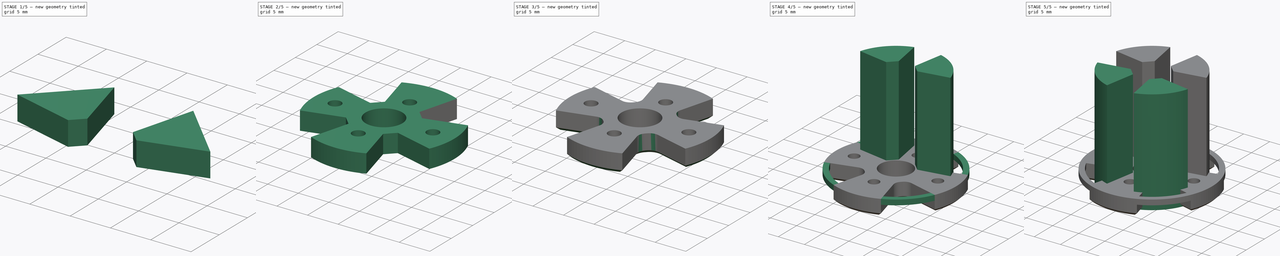
[diagram: build sequence overview — one tinted view per stage of 5, left to right]
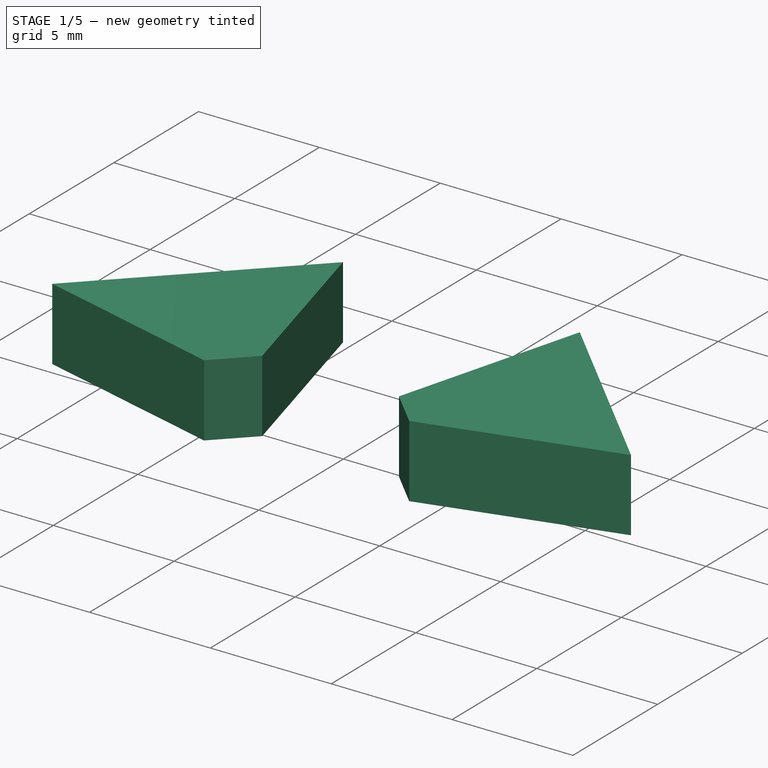
[diagram: stage 1 of 5 — iso view after this stage's code; geometry added in this stage tinted green]
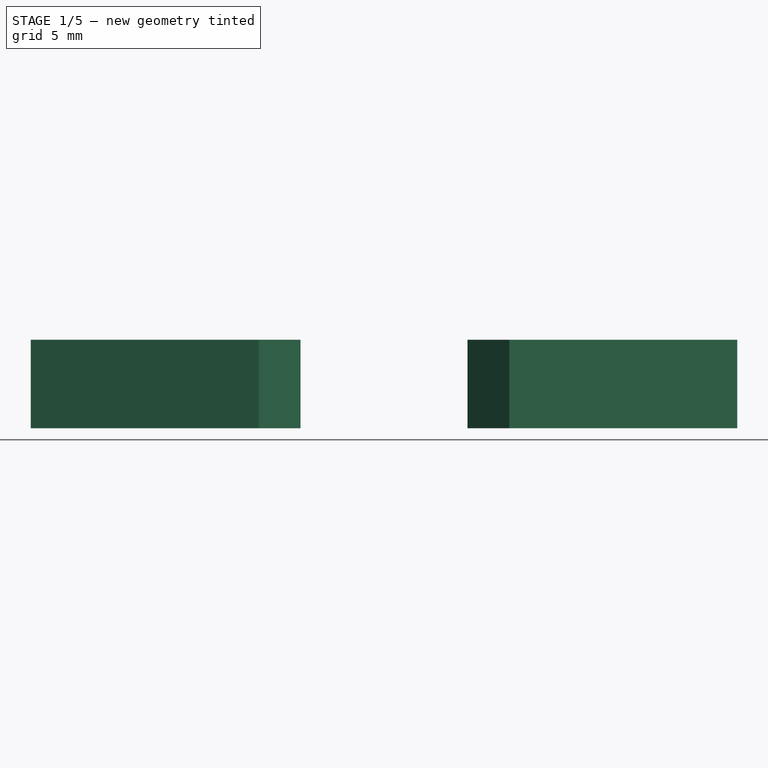
[diagram: stage 1 of 5 — front view after this stage's code; geometry added in this stage tinted green]
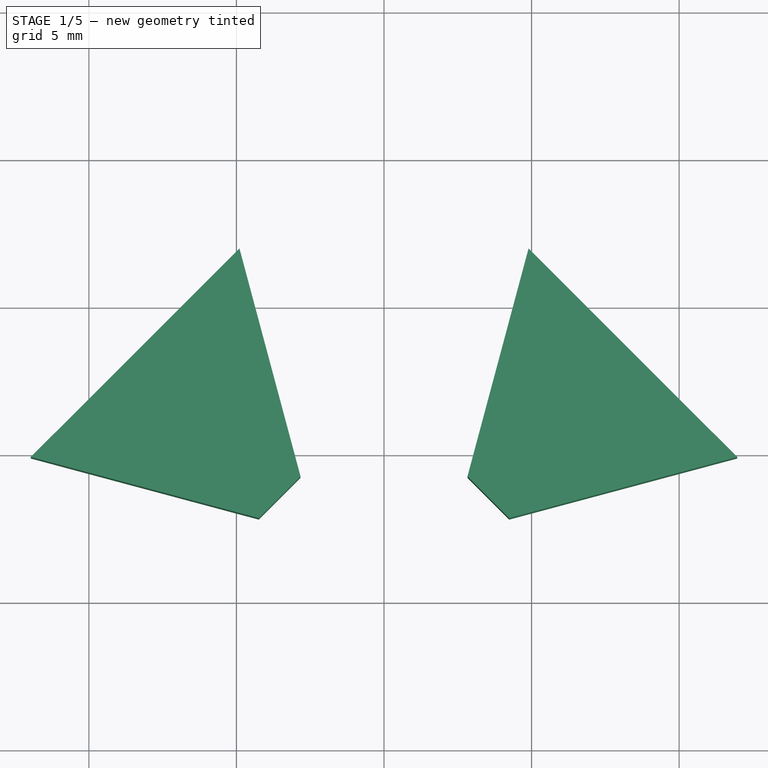
[diagram: stage 1 of 5 — top view after this stage's code; geometry added in this stage tinted green]
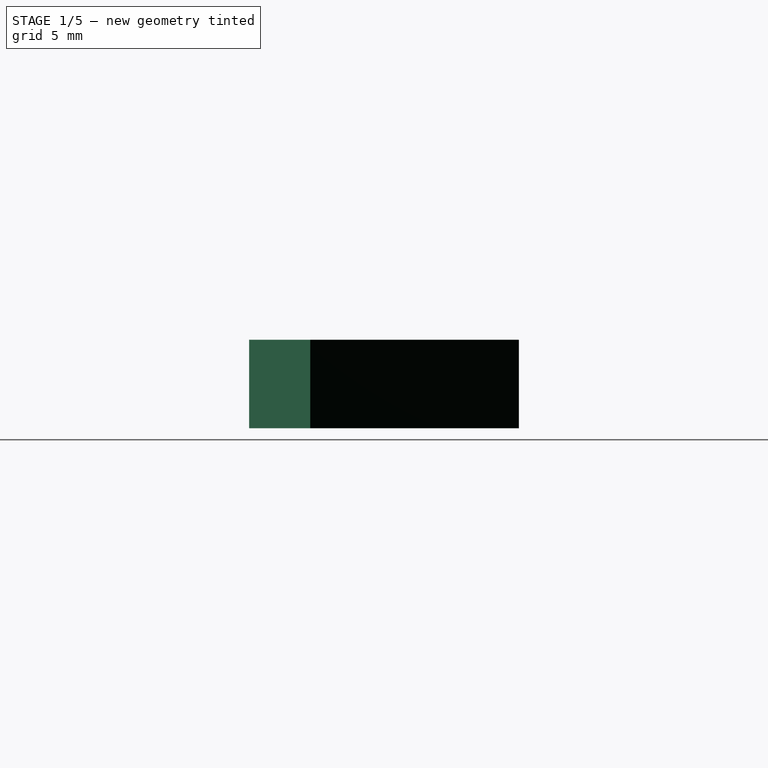
[diagram: stage 1 of 5 — right view after this stage's code; geometry added in this stage tinted green]
FCSTD DOCUMENT  (FreeCAD 0.18R4 (GitTag))
Label: bldc_motor
License: All rights reserved
LicenseURL: http://en.wikipedia.org/wiki/All_rights_reserved
objects: Part::Extrusion×10, Sketcher::SketchObject×5, Part::MultiFuse×3, Part::Chamfer×3, Part::Cut×2, Part::Fillet×1, Part::Revolution×1
note: 25 computed .brp shape members not serialized (recipe doc carries the construction recipe); baked Part::Feature solids carry a one-line shape summary decoded from their .brp

FEATURE [Sketcher::SketchObject] Sketch
  sketch-geometry (6):
    g0: Circle CenterX=0 CenterY=0 CenterZ=0 NormalX=0 NormalY=0 NormalZ=1 AngleXU=0 Radius=11.5
    g1: Circle CenterX=-1e-16 CenterY=6 CenterZ=0 NormalX=0 NormalY=0 NormalZ=1 AngleXU=0 Radius=1
    g2: Circle CenterX=-8 CenterY=1e-16 CenterZ=0 NormalX=0 NormalY=0 NormalZ=1 AngleXU=0 Radius=1
    g3: Circle CenterX=0 CenterY=-6 CenterZ=0 NormalX=0 NormalY=0 NormalZ=1 AngleXU=0 Radius=1
    g4: Circle CenterX=8 CenterY=0 CenterZ=0 NormalX=0 NormalY=0 NormalZ=1 AngleXU=0 Radius=1
    g5: Circle CenterX=0 CenterY=0 CenterZ=0 NormalX=0 NormalY=0 NormalZ=1 AngleXU=0 Radius=3
  constraints (16):
    c: Coincident(g0,g-1)
    c: Radius(g1) = 1
    c: Radius(g2) = 1
    c: Radius(g4) = 1
    c: Radius(g3) = 1
    c: DistanceX(g1,g3) = 0
    c: DistanceX(g2,g4) = 16
    c: DistanceY(g3,g1) = 12
    c: DistanceY(g0,g1) = 6
    c: DistanceY(g0,g2) = 0
    c: DistanceX(g2,g0) = 8
    c: DistanceX(g0,g1) = 0
    c: DistanceY(g0,g4) = 0
    c: Radius(g0) = 11.5
    c: Coincident(g5,g0)
    c: Radius(g5) = 3
FEATURE [Part::Extrusion] Extrude
  Base = -> Sketch
  Dir = (0,0,1)
  DirMode = 2
  FaceMakerClass = Part::FaceMakerBullseye
  LengthFwd = 3
  LengthRev = 0
  Solid = true
  Symmetric = false
FEATURE [Part::Extrusion] Extrude003
  Base = -> Sketch001
  Dir = (0,0,-1)
  DirMode = 2
  FaceMakerClass = Part::FaceMakerBullseye
  LengthFwd = 3
  LengthRev = 0
  Placement = pos=(0,0,0) rot=(0,0,1;3.14159rad)
  Reversed = true
  Solid = true
  Symmetric = false
FEATURE [Part::Extrusion] Extrude004
  Base = -> Sketch001
  Dir = (0,0,-1)
  DirMode = 2
  FaceMakerClass = Part::FaceMakerBullseye
  LengthFwd = 3
  LengthRev = 0
  Placement = pos=(0,0,0) rot=(0,0,-1;1.5708rad)
  Reversed = true
  Solid = true
  Symmetric = false
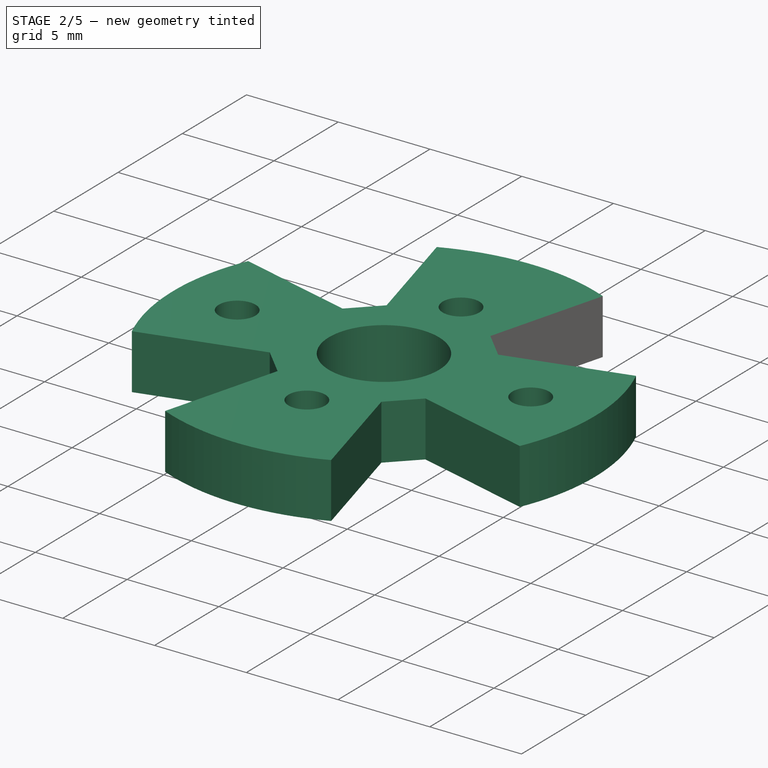
[diagram: stage 2 of 5 — iso view after this stage's code; geometry added in this stage tinted green]
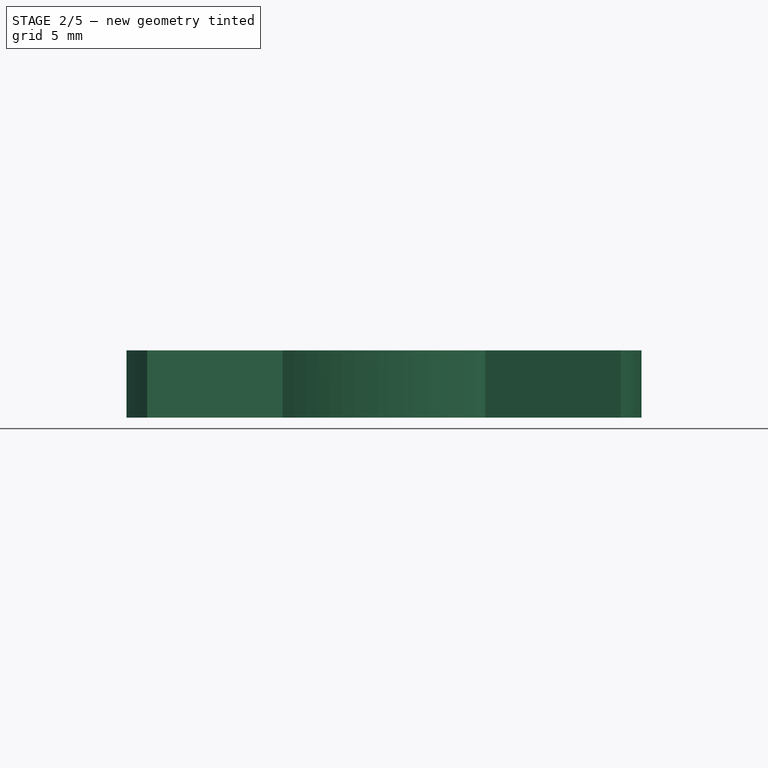
[diagram: stage 2 of 5 — front view after this stage's code; geometry added in this stage tinted green]
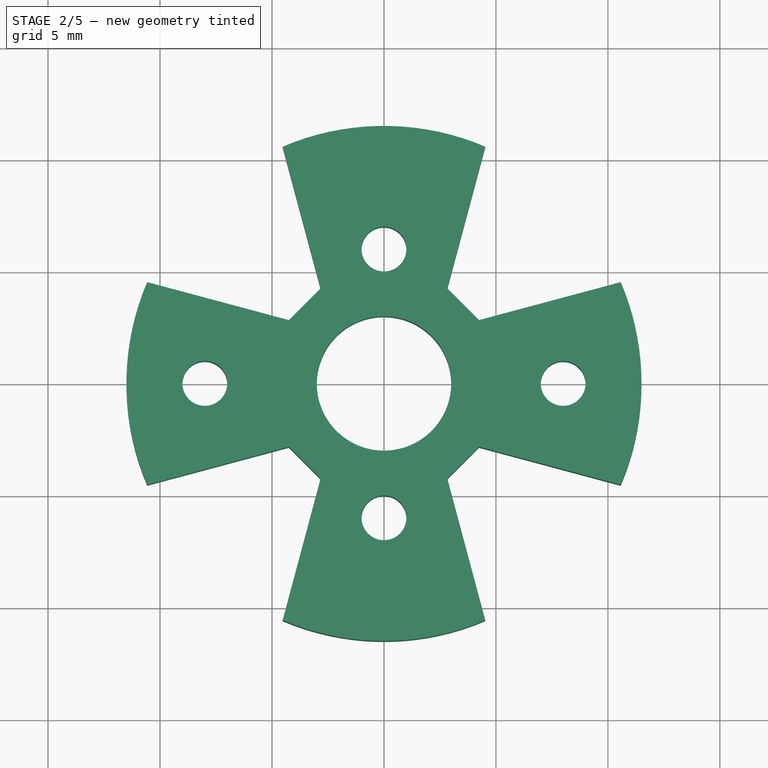
[diagram: stage 2 of 5 — top view after this stage's code; geometry added in this stage tinted green]
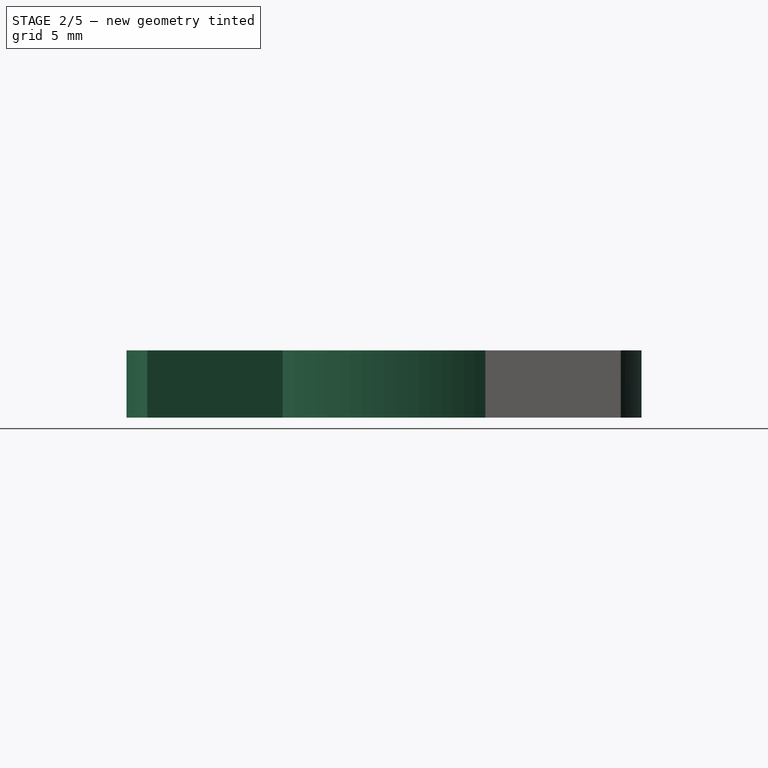
[diagram: stage 2 of 5 — right view after this stage's code; geometry added in this stage tinted green]
FEATURE [Sketcher::SketchObject] Sketch001
  MapMode = 5
  Placement = pos=(0,0,0) rot=(1,0,0;3.14159rad)
  Support = -> [Extrude]
  sketch-geometry (5):
    g0: LineSegment StartX=-11.97 StartY=4.89898 StartZ=0 EndX=-4.24264 EndY=2.82843 EndZ=0
    g1: LineSegment StartX=-4.89898 StartY=11.97 StartZ=0 EndX=-2.82843 EndY=4.24264 EndZ=0
    g2: LineSegment StartX=-4.24264 StartY=2.82843 StartZ=0 EndX=-2.82843 EndY=4.24264 EndZ=0
    g3: LineSegment StartX=-11.97 StartY=4.89898 StartZ=0 EndX=-4.89898 EndY=11.97 EndZ=0
    g4: LineSegment [constr] StartX=0 StartY=0 StartZ=0 EndX=-3.53553 EndY=3.53553 EndZ=0
  constraints (15):
    c: Coincident(g0,g3)
    c: Coincident(g3,g1)
    c: Coincident(g0,g2)
    c: Coincident(g2,g1)
    c: Angle(g-1,g2) = 0.785398
    c: Coincident(g4,g-1)
    c: PointOnObject(g4,g2)
    c: Perpendicular(g2,g4)
    c: Distance(g2) = 2
    c: Distance(g4,g1) = 1
    c: Angle(g1,g0) = 1.0472
    c: Parallel(g2,g3)
    c: Angle(g3,g1) = 1.0472
    c: Distance(g4) = 5
    c: Distance(g1,g1) = 8
FEATURE [Part::Extrusion] Extrude001
  Base = -> Sketch001
  Dir = (0,0,-1)
  DirMode = 2
  FaceMakerClass = Part::FaceMakerBullseye
  LengthFwd = 3
  LengthRev = 0
  Reversed = true
  Solid = true
  Symmetric = false
FEATURE [Part::Extrusion] Extrude002
  Base = -> Sketch001
  Dir = (0,0,-1)
  DirMode = 2
  FaceMakerClass = Part::FaceMakerBullseye
  LengthFwd = 3
  LengthRev = 0
  Placement = pos=(0,0,0) rot=(0,0,1;1.5708rad)
  Reversed = true
  Solid = true
  Symmetric = false
FEATURE [Part::MultiFuse] Fusion
  Shapes = -> [Extrude003,Extrude004,Extrude002,Extrude001]
FEATURE [Part::Cut] Cut
  Base = -> Extrude
  Tool = -> Fusion
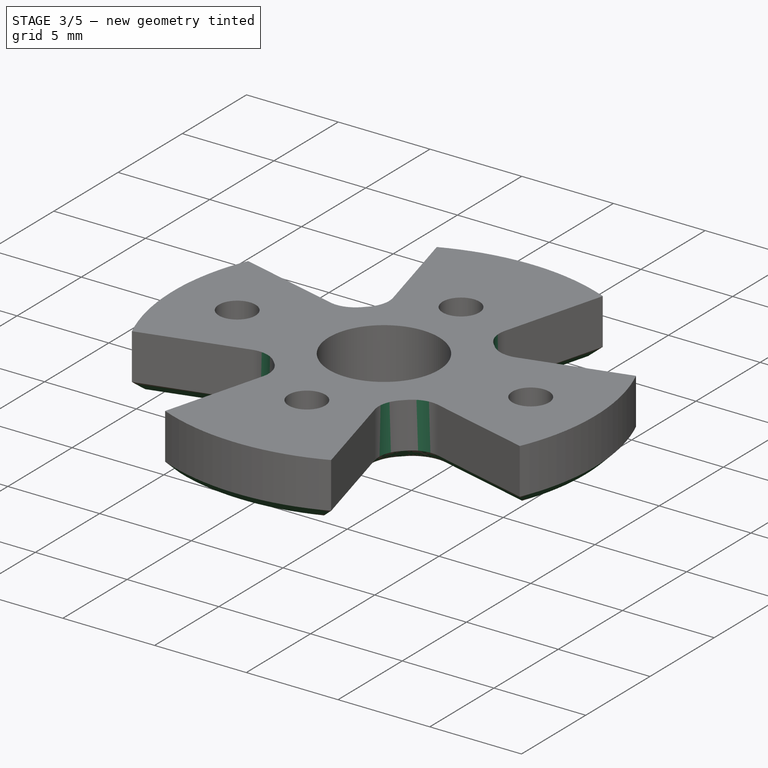
[diagram: stage 3 of 5 — iso view after this stage's code; geometry added in this stage tinted green]
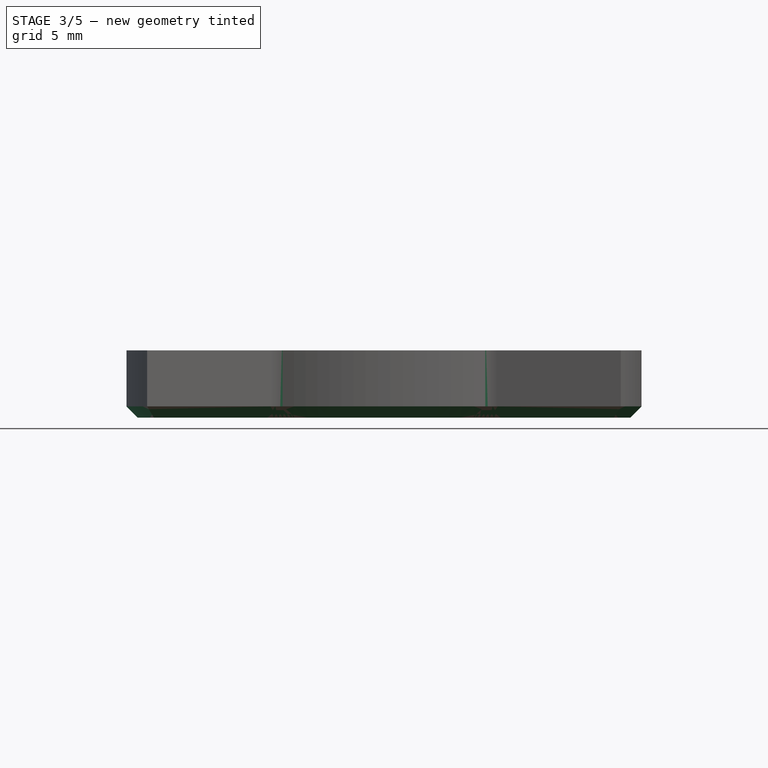
[diagram: stage 3 of 5 — front view after this stage's code; geometry added in this stage tinted green]
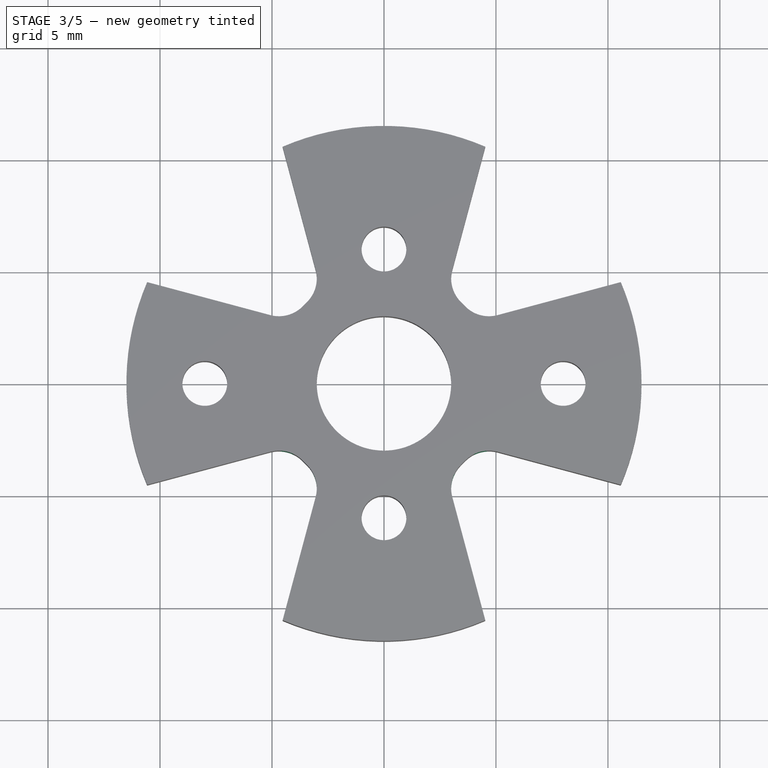
[diagram: stage 3 of 5 — top view after this stage's code; geometry added in this stage tinted green]
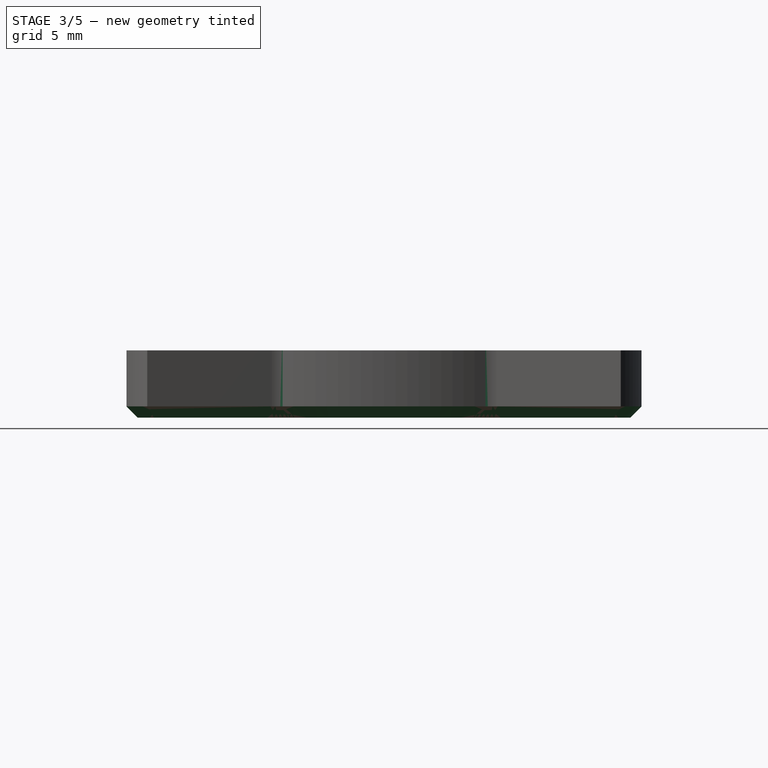
[diagram: stage 3 of 5 — right view after this stage's code; geometry added in this stage tinted green]
FEATURE [Part::Fillet] Fillet
  Base = -> Cut
  Edges = 8 edges r=1.49: [Edge26,Edge49,Edge50,Edge53,Edge54,Edge57,Edge58,Edge61]
FEATURE [Part::Chamfer] Chamfer
  Base = -> Fillet
  Edges = 20 edges r=0.5: [Edge1,Edge2,Edge4,Edge6,Edge7,Edge8,Edge9,Edge11,Edge12,Edge13,Edge14,Edge15,Edge16,Edge18,Edge19,Edge20,Edge21,Edge23,Edge24,Edge25]
FEATURE [Part::Chamfer] Chamfer001
  Base = -> Chamfer
  Edges = 5 edges r=0.5: [Edge1,Edge3,Edge12,Edge15,Edge24]
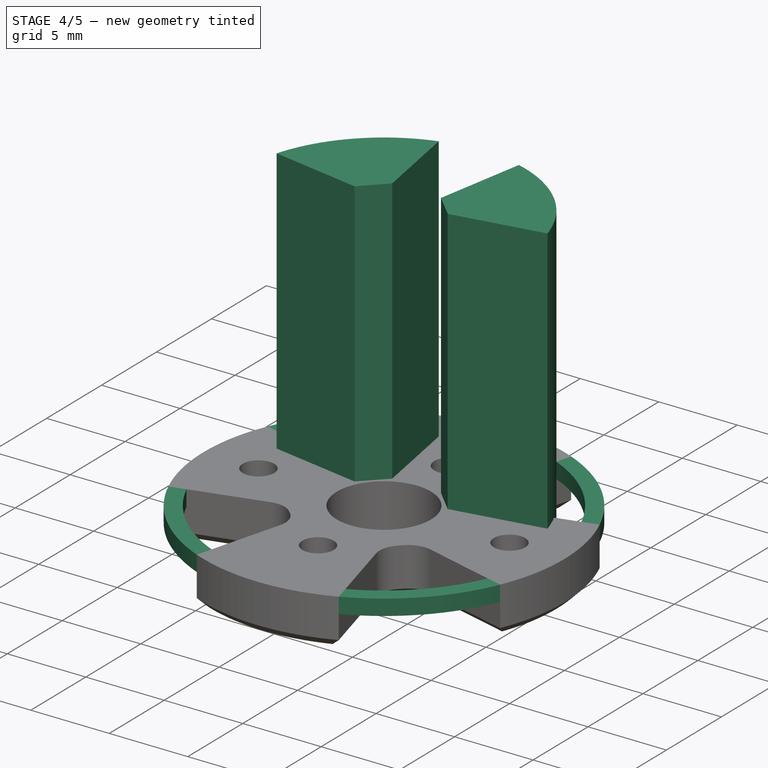
[diagram: stage 4 of 5 — iso view after this stage's code; geometry added in this stage tinted green]
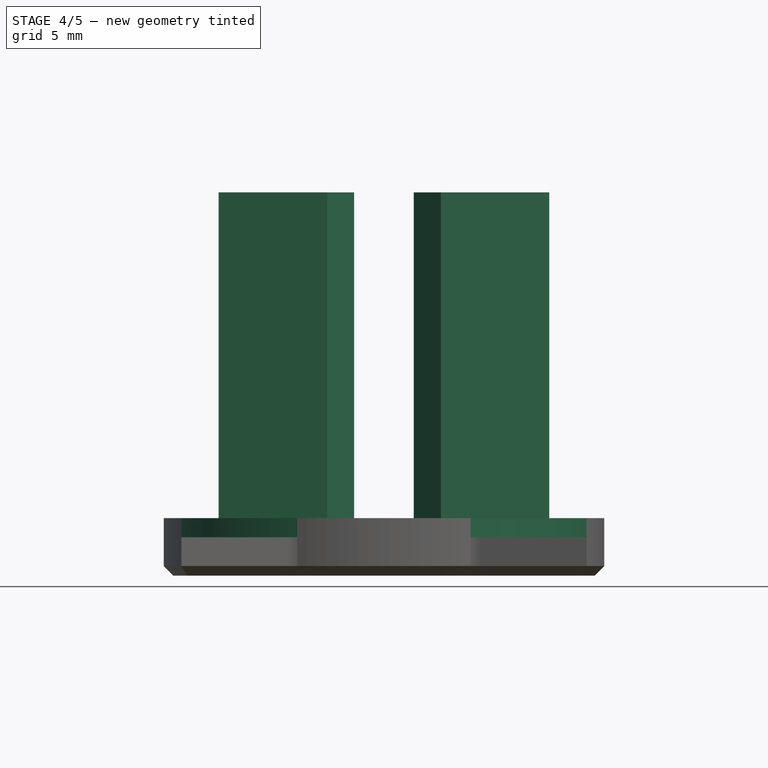
[diagram: stage 4 of 5 — front view after this stage's code; geometry added in this stage tinted green]
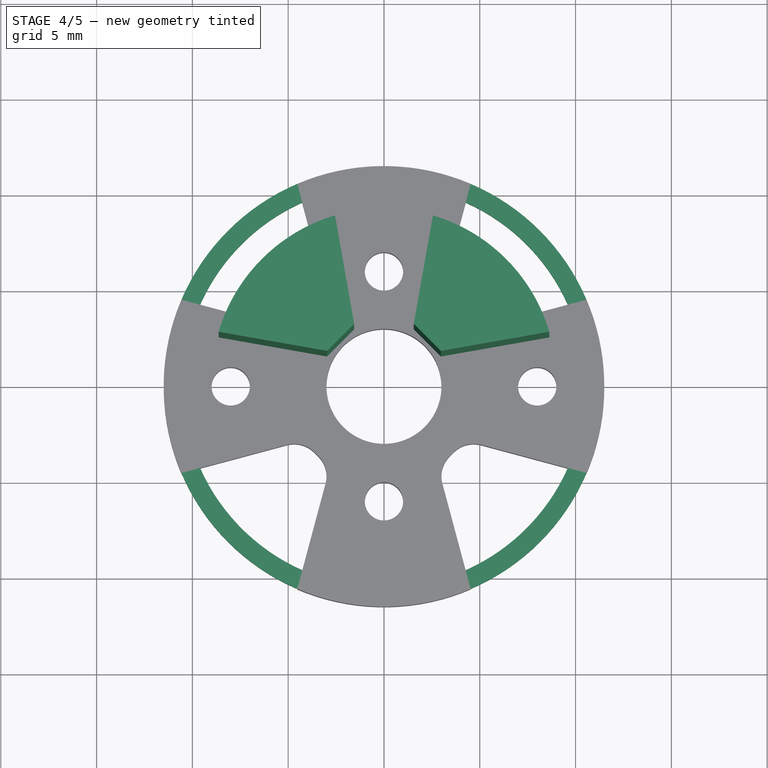
[diagram: stage 4 of 5 — top view after this stage's code; geometry added in this stage tinted green]
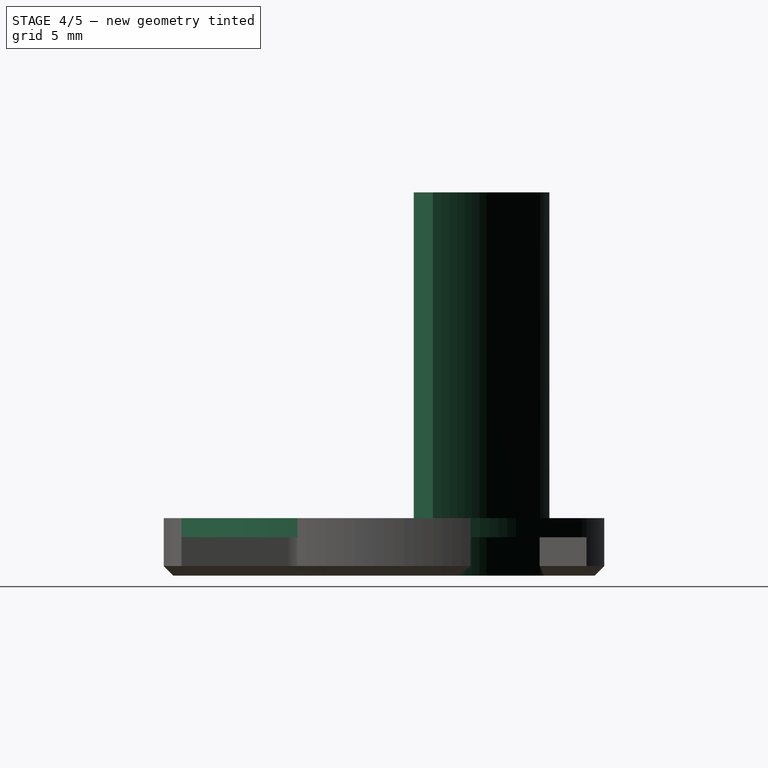
[diagram: stage 4 of 5 — right view after this stage's code; geometry added in this stage tinted green]
FEATURE [Sketcher::SketchObject] Sketch002
  MapMode = 5
  Placement = pos=(0,0,3) rot=(0,0,1;0rad)
  Support = -> [Cut]
  sketch-geometry (2):
    g0: Circle CenterX=0 CenterY=0 CenterZ=0 NormalX=0 NormalY=0 NormalZ=1 AngleXU=0 Radius=11.5
    g1: Circle CenterX=0 CenterY=0 CenterZ=0 NormalX=0 NormalY=0 NormalZ=1 AngleXU=0 Radius=10.5
  constraints (4):
    c: Coincident(g0,g1)
    c: Coincident(g0,g-1)
    c: Radius(g0) = 11.5
    c: Radius(g1) = 10.5
FEATURE [Part::Extrusion] Extrude005
  Base = -> Sketch002
  Dir = (0,0,1)
  DirMode = 2
  FaceMakerClass = Part::FaceMakerBullseye
  LengthFwd = 1
  LengthRev = 0
  Reversed = true
  Solid = true
  Symmetric = false
FEATURE [Part::Extrusion] Extrude008
  Base = -> Sketch004
  Dir = (0,0,-1)
  DirMode = 2
  FaceMakerClass = Part::FaceMakerBullseye
  LengthFwd = 20
  LengthRev = 0
  Placement = pos=(0,0,0) rot=(0,0,1;3.14159rad)
  Reversed = true
  Solid = true
  Symmetric = false
FEATURE [Part::Extrusion] Extrude009
  Base = -> Sketch004
  Dir = (0,0,-1)
  DirMode = 2
  FaceMakerClass = Part::FaceMakerBullseye
  LengthFwd = 20
  LengthRev = 0
  Placement = pos=(0,0,0) rot=(0,0,-1;1.5708rad)
  Reversed = true
  Solid = true
  Symmetric = false
FEATURE [Part::Cut] Cut001
  Base = -> Revolve
  Tool = -> Fusion001
FEATURE [Part::Chamfer] Chamfer002
  Base = -> Cut001
  Edges = 1 edges r=0.5: [Edge1]
FEATURE [Part::MultiFuse] Fusion002
  Shapes = -> [Chamfer001,Extrude005]
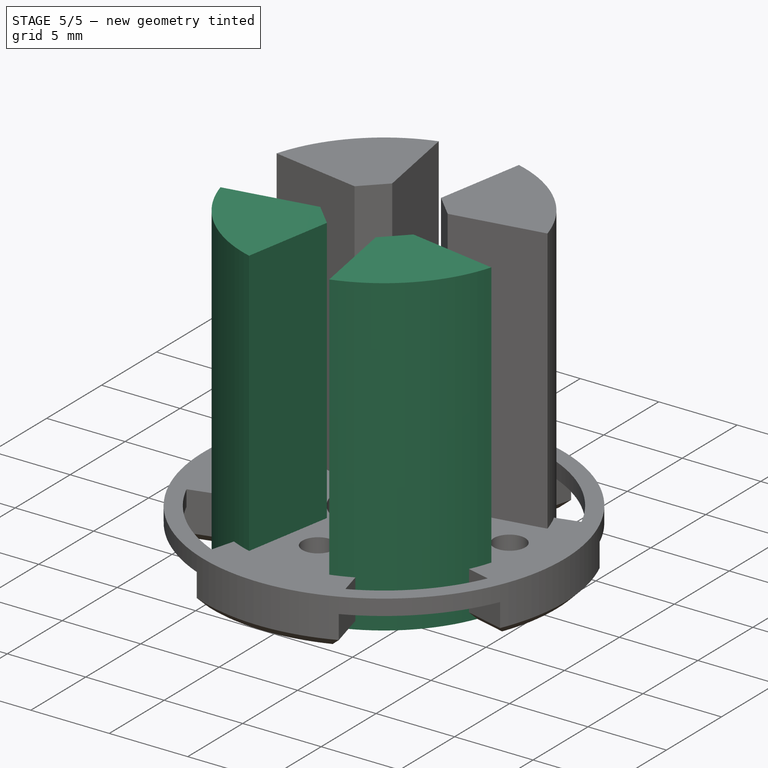
[diagram: stage 5 of 5 — iso view after this stage's code; geometry added in this stage tinted green]
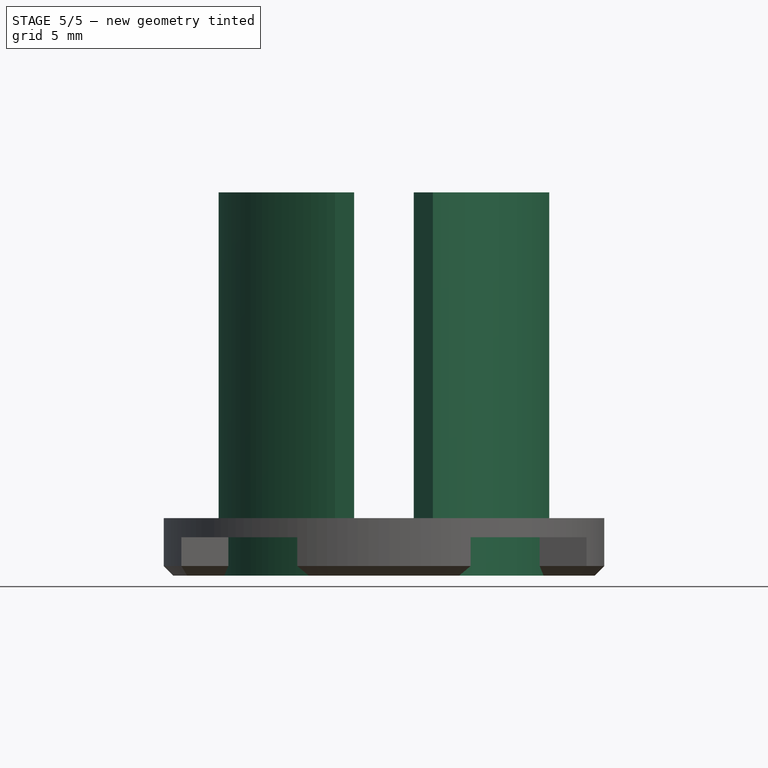
[diagram: stage 5 of 5 — front view after this stage's code; geometry added in this stage tinted green]
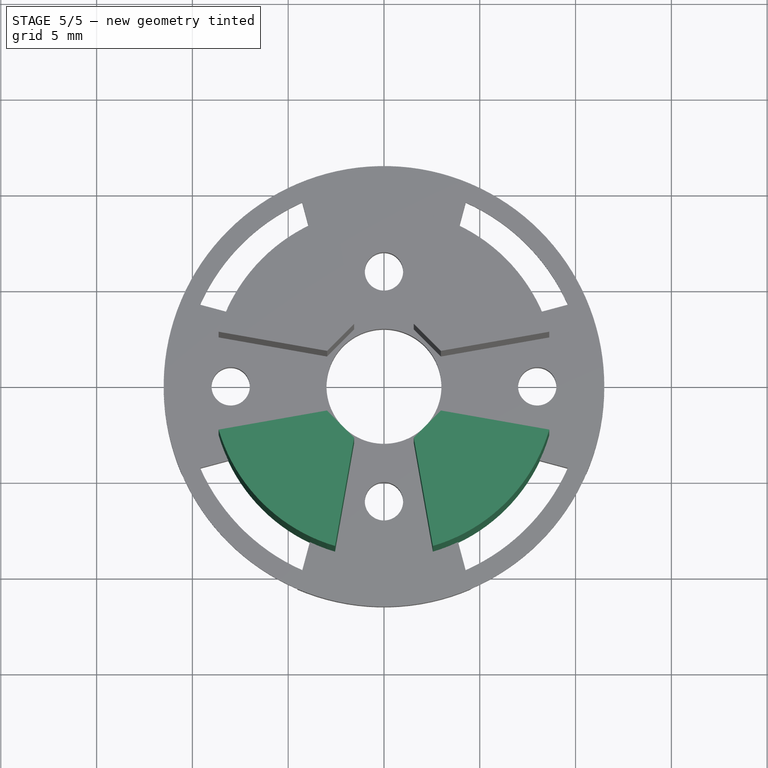
[diagram: stage 5 of 5 — top view after this stage's code; geometry added in this stage tinted green]
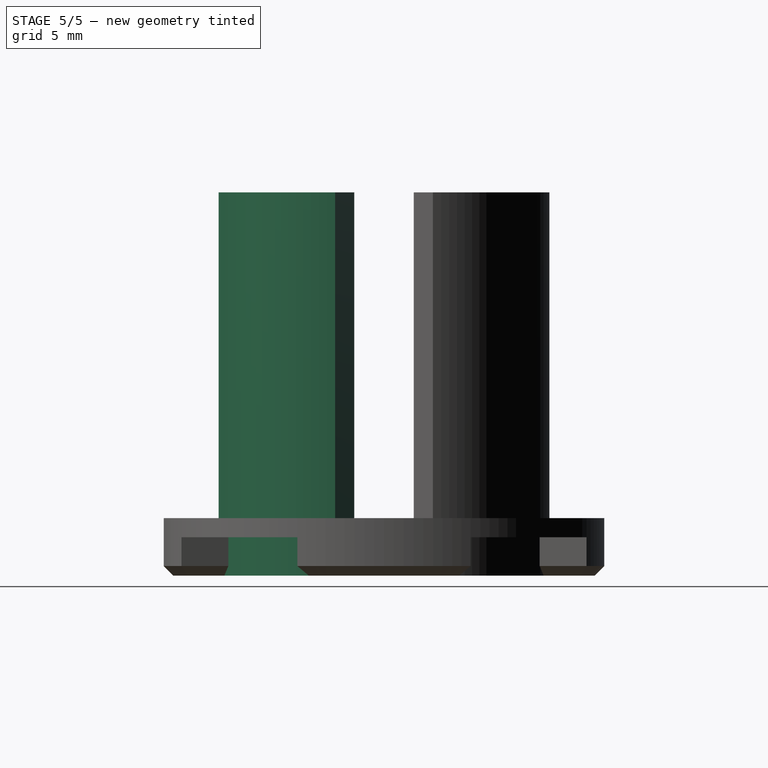
[diagram: stage 5 of 5 — right view after this stage's code; geometry added in this stage tinted green]
FEATURE [Sketcher::SketchObject] Sketch003
  Placement = pos=(0,0,0) rot=(1,0,0;1.5708rad)
  sketch-geometry (8):
    g0: LineSegment StartX=11.5 StartY=3.5 StartZ=0 EndX=10.5 EndY=3.5 EndZ=0
    g1: LineSegment StartX=10.5 StartY=3.5 StartZ=0 EndX=10.5 EndY=11.5 EndZ=0
    g2: LineSegment StartX=10.5 StartY=11.5 StartZ=0 EndX=0 EndY=11.5 EndZ=0
    g3: LineSegment StartX=11.5 StartY=3.5 StartZ=0 EndX=11.5 EndY=11.5 EndZ=0
    g4: LineSegment StartX=11.5 StartY=11.5 StartZ=0 EndX=8.0359 EndY=13.5 EndZ=0
    g5: LineSegment StartX=8.0359 StartY=13.5 StartZ=0 EndX=2.5 EndY=13.5 EndZ=0
    g6: LineSegment StartX=2.5 StartY=13.5 StartZ=0 EndX=2.5 EndY=23.5 EndZ=0
    g7: LineSegment StartX=2.5 StartY=23.5 StartZ=0 EndX=0 EndY=23.5 EndZ=0
  constraints (25):
    c: Coincident(g0,g1)
    c: Vertical(g1)
    c: Coincident(g1,g2)
    c: Horizontal(g2)
    c: Coincident(g0,g3)
    c: Vertical(g3)
    c: Coincident(g3,g4)
    c: Coincident(g4,g5)
    c: Horizontal(g5)
    c: Coincident(g5,g6)
    c: Vertical(g6)
    c: Coincident(g6,g7)
    c: Horizontal(g7)
    c: DistanceY(g3,g3) = 8
    c: Horizontal(g0)
    c: DistanceY(g-1,g0) = 3.5
    c: Angle(g4,g3) = 2.0944
    c: DistanceX(g-1,g0) = 11.5
    c: DistanceX(g0,g0) = 1
    c: PointOnObject(g2,g-2)
    c: DistanceY(g2,g5) = 2
    c: DistanceX(g2,g5) = 2.5
    c: DistanceY(g6,g6) = 10
    c: DistanceY(g1,g3) = 0
    c: PointOnObject(g7,g-2)
FEATURE [Part::Revolution] Revolve
  Angle = 360
  Axis = (0,0,1)
  Base = (0,0,0)
  FaceMakerClass = Part::FaceMakerBullseye
  Solid = false
  Source = -> Sketch003
  Symmetric = false
FEATURE [Sketcher::SketchObject] Sketch004
  MapMode = 5
  Placement = pos=(0,0,0) rot=(1,0,0;3.14159rad)
  Support = -> [Extrude]
  sketch-geometry (6):
    g0: LineSegment StartX=-8.6301 StartY=2.55369 StartZ=0 EndX=-2.96985 EndY=1.55563 EndZ=0
    g1: LineSegment StartX=-2.55369 StartY=8.6301 StartZ=0 EndX=-1.55563 EndY=2.96985 EndZ=0
    g2: LineSegment StartX=-2.96985 StartY=1.55563 StartZ=0 EndX=-1.55563 EndY=2.96985 EndZ=0
    g3: LineSegment [constr] StartX=-8.6301 StartY=2.55369 StartZ=0 EndX=-2.55369 EndY=8.6301 EndZ=0
    g4: LineSegment [constr] StartX=0 StartY=0 StartZ=0 EndX=-2.26274 EndY=2.26274 EndZ=0
    g5: ArcOfCircle CenterX=0 CenterY=0 CenterZ=0 NormalX=0 NormalY=0 NormalZ=1 AngleXU=0 Radius=9 StartAngle=1.85849 EndAngle=2.8539
  constraints (19):
    c: Coincident(g3,g1)
    c: Coincident(g0,g2)
    c: Coincident(g2,g1)
    c: Angle(g-1,g2) = 0.785398
    c: Coincident(g4,g-1)
    c: PointOnObject(g4,g2)
    c: Perpendicular(g2,g4)
    c: Distance(g2) = 2
    c: Distance(g4,g1) = 1
    c: Angle(g1,g0) = 1.22173
    c: Parallel(g2,g3)
    c: Distance(g4) = 3.2
    c: Coincident(g5,g-1)
    c: Coincident(g5,g1)
    c: DistanceY(g0,g3) = 0
    c: DistanceX(g3,g0) = 0
    c: DistanceY(g0,g5) = 0
    c: Radius(g5) = 9
    c: DistanceX(g5,g0) = 0
FEATURE [Part::Extrusion] Extrude006
  Base = -> Sketch004
  Dir = (0,0,-1)
  DirMode = 2
  FaceMakerClass = Part::FaceMakerBullseye
  LengthFwd = 20
  LengthRev = 0
  Reversed = true
  Solid = true
  Symmetric = false
FEATURE [Part::Extrusion] Extrude007
  Base = -> Sketch004
  Dir = (0,0,-1)
  DirMode = 2
  FaceMakerClass = Part::FaceMakerBullseye
  LengthFwd = 20
  LengthRev = 0
  Placement = pos=(0,0,0) rot=(0,0,1;1.5708rad)
  Reversed = true
  Solid = true
  Symmetric = false
FEATURE [Part::MultiFuse] Fusion001
  Shapes = -> [Extrude009,Extrude006,Extrude007,Extrude008]
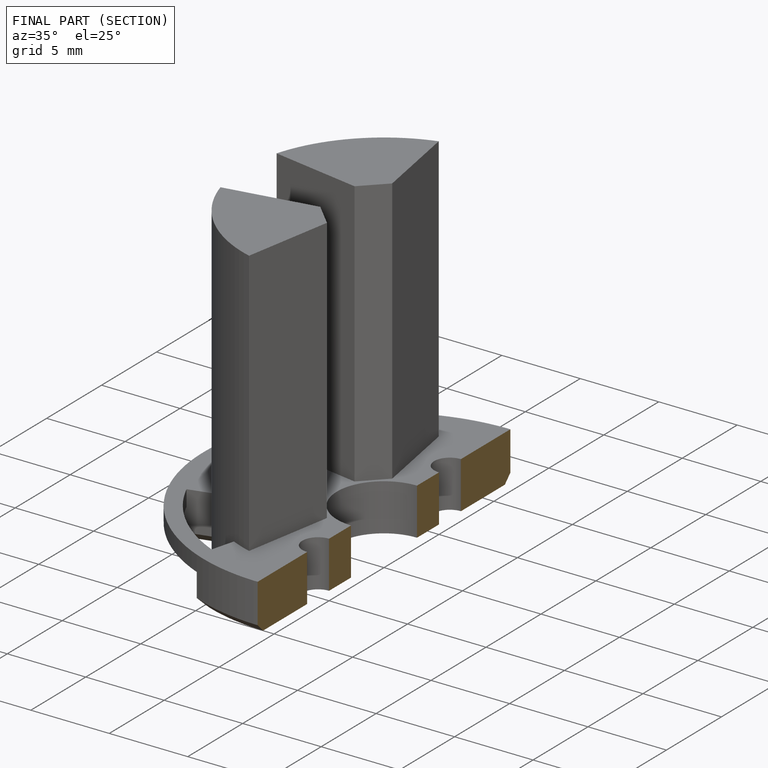
[diagram: finished part — half-section view (interior)]
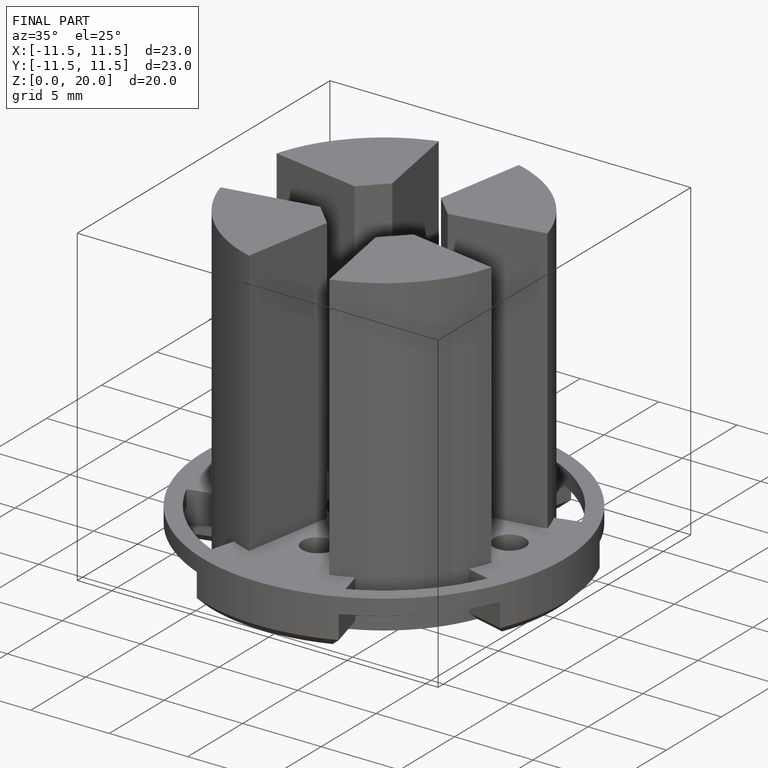
[diagram: finished part — iso view with bounding-box wireframe]
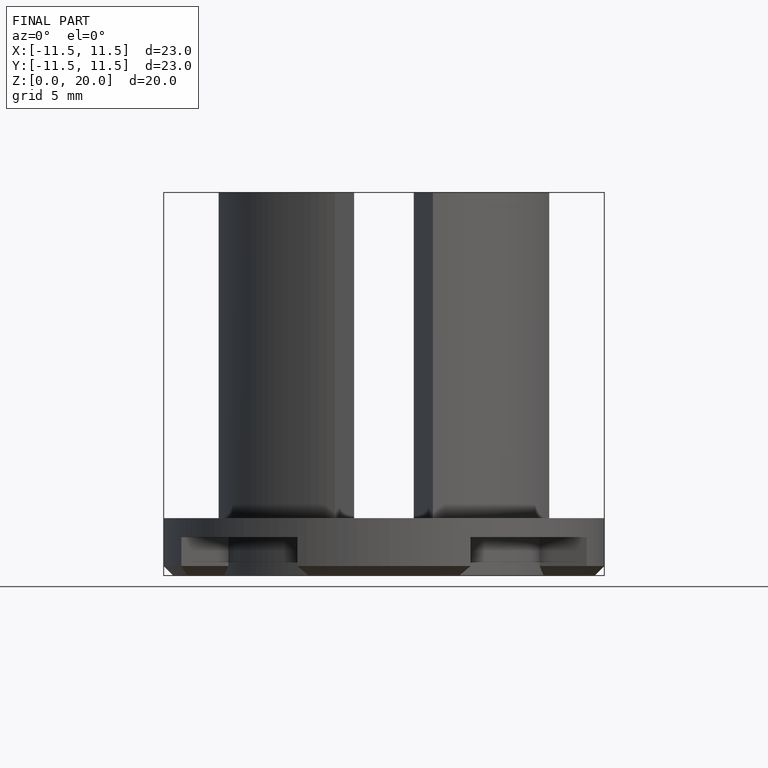
[diagram: finished part — front view with bounding-box wireframe]
